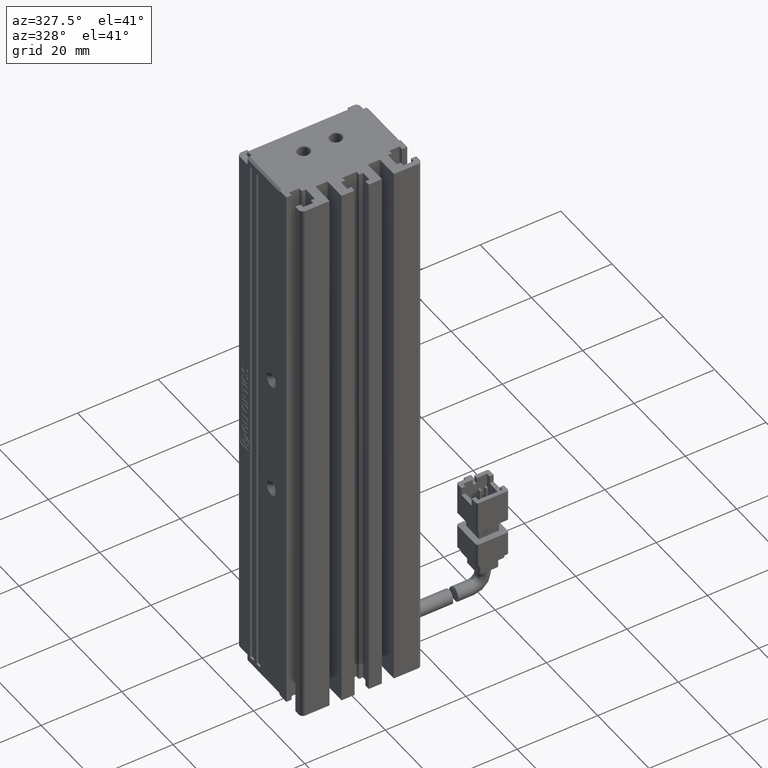
[diagram: clean part render]
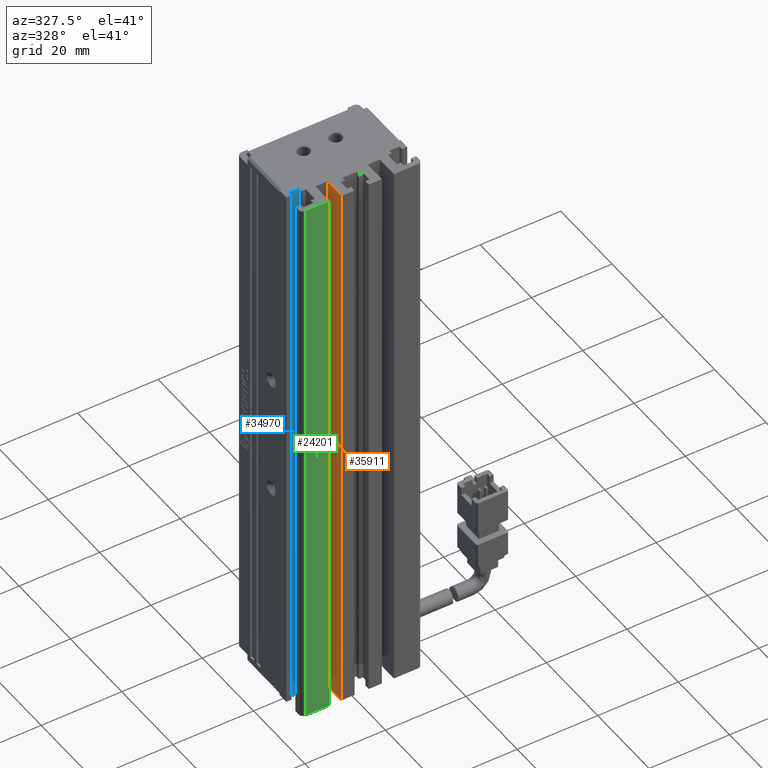
[diagram: same view with three faces highlighted in distinct colors, each labeled with its STEP entity id]
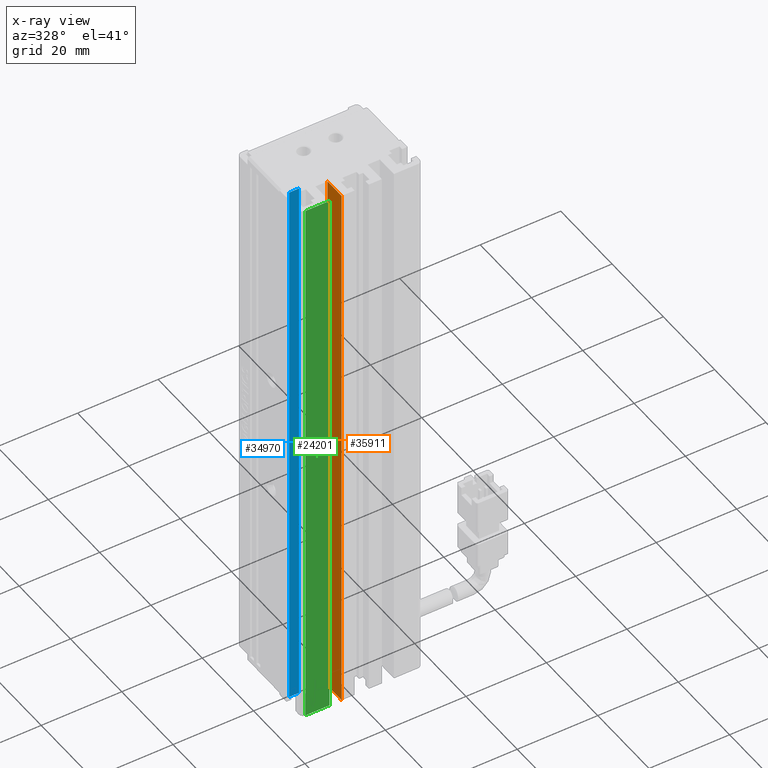
[diagram: x-ray of the same camera — body ghosted, the three highlighted faces saturated]
A machine part, auxiliary view with three faces highlighted in distinct colors.
The next image is the same camera in x-ray (body ghosted, the three faces saturated) — at least one of them is partly hidden behind the body in this view.
Their STEP definitions:

[orange] entity #35911 — the highlighted planar face has unit normal (-1, 0, 0).
#1397 = CARTESIAN_POINT ( 'NONE',  ( 35.92537974683543200, 10.69594479660386800, -45.00000000000000000 ) ) ;
#1851 = EDGE_LOOP ( 'NONE', ( #9898, #36147, #6650, #27850 ) ) ;
#2337 = VECTOR ( 'NONE', #10073, 1000.000000000000000 ) ;
#2978 = LINE ( 'NONE', #34655, #32596 ) ;
#3392 = EDGE_CURVE ( 'NONE', #16951, #4048, #2978, .T. ) ;
#3605 = CARTESIAN_POINT ( 'NONE',  ( 35.92537974683543200, 16.19594479660386500, -45.00000000000000000 ) ) ;
#4048 = VERTEX_POINT ( 'NONE', #20973 ) ;
#4151 = EDGE_CURVE ( 'NONE', #23689, #31642, #32890, .T. ) ;
#6650 = ORIENTED_EDGE ( 'NONE', *, *, #32200, .T. ) ;
#7803 = FACE_OUTER_BOUND ( 'NONE', #1851, .T. ) ;
#9898 = ORIENTED_EDGE ( 'NONE', *, *, #26881, .F. ) ;
#10042 = CARTESIAN_POINT ( 'NONE',  ( 35.92537974683543200, 7.083797468354437600, -45.00000000000000000 ) ) ;
#10073 = DIRECTION ( 'NONE',  ( 0.0000000000000000000, -0.0000000000000000000, -1.000000000000000000 ) ) ;
#10598 = LINE ( 'NONE', #28129, #24924 ) ;
#11026 = CARTESIAN_POINT ( 'NONE',  ( 35.92537974683543200, 10.69594479660386800, -185.0000000000000000 ) ) ;
#12921 = DIRECTION ( 'NONE',  ( 0.0000000000000000000, 0.0000000000000000000, 1.000000000000000000 ) ) ;
#15789 = DIRECTION ( 'NONE',  ( -0.0000000000000000000, -1.000000000000000000, 0.0000000000000000000 ) ) ;
#15877 = AXIS2_PLACEMENT_3D ( 'NONE', #10042, #30119, #12921 ) ;
#16704 = DIRECTION ( 'NONE',  ( -0.0000000000000000000, -1.000000000000000000, 0.0000000000000000000 ) ) ;
#16951 = VERTEX_POINT ( 'NONE', #3605 ) ;
#18164 = LINE ( 'NONE', #30088, #25802 ) ;
#20973 = CARTESIAN_POINT ( 'NONE',  ( 35.92537974683543200, 16.19594479660386500, -185.0000000000000000 ) ) ;
#23689 = VERTEX_POINT ( 'NONE', #30436 ) ;
#24924 = VECTOR ( 'NONE', #16704, 1000.000000000000000 ) ;
#25802 = VECTOR ( 'NONE', #15789, 1000.000000000000000 ) ;
#26881 = EDGE_CURVE ( 'NONE', #16951, #23689, #18164, .T. ) ;
#27850 = ORIENTED_EDGE ( 'NONE', *, *, #4151, .F. ) ;
#28129 = CARTESIAN_POINT ( 'NONE',  ( 35.92537974683543200, 7.083797468354437600, -185.0000000000000000 ) ) ;
#30088 = CARTESIAN_POINT ( 'NONE',  ( 35.92537974683543200, 7.083797468354437600, -45.00000000000000000 ) ) ;
#30119 = DIRECTION ( 'NONE',  ( -1.000000000000000000, 0.0000000000000000000, 0.0000000000000000000 ) ) ;
#30436 = CARTESIAN_POINT ( 'NONE',  ( 35.92537974683543200, 10.69594479660386800, -45.00000000000000000 ) ) ;
#31642 = VERTEX_POINT ( 'NONE', #11026 ) ;
#32200 = EDGE_CURVE ( 'NONE', #4048, #31642, #10598, .T. ) ;
#32596 = VECTOR ( 'NONE', #34774, 1000.000000000000000 ) ;
#32881 = PLANE ( 'NONE',  #15877 ) ;
#32890 = LINE ( 'NONE', #1397, #2337 ) ;
#34655 = CARTESIAN_POINT ( 'NONE',  ( 35.92537974683543200, 16.19594479660386500, -45.00000000000000000 ) ) ;
#34774 = DIRECTION ( 'NONE',  ( -0.0000000000000000000, -0.0000000000000000000, -1.000000000000000000 ) ) ;
#35911 = ADVANCED_FACE ( 'NONE', ( #7803 ), #32881, .T. ) ;
#36147 = ORIENTED_EDGE ( 'NONE', *, *, #3392, .T. ) ;

[blue] entity #34970 — the highlighted planar face has unit normal (0, 1, 0).
#2114 = CARTESIAN_POINT ( 'NONE',  ( 40.92537974683542500, 17.49594479660386500, -185.0000000000000000 ) ) ;
#2402 = EDGE_CURVE ( 'NONE', #18676, #33242, #3627, .T. ) ;
#2538 = ORIENTED_EDGE ( 'NONE', *, *, #19290, .F. ) ;
#3415 = CARTESIAN_POINT ( 'NONE',  ( 40.92537974683542500, 17.49594479660386500, -45.00000000000000000 ) ) ;
#3627 = LINE ( 'NONE', #36218, #17970 ) ;
#4691 = DIRECTION ( 'NONE',  ( 1.000000000000000000, 0.0000000000000000000, 0.0000000000000000000 ) ) ;
#5907 = CARTESIAN_POINT ( 'NONE',  ( 29.72537974683542600, 17.49594479660386500, -45.00000000000000000 ) ) ;
#5942 = EDGE_LOOP ( 'NONE', ( #2538, #17160, #21999, #11202 ) ) ;
#6301 = DIRECTION ( 'NONE',  ( 0.0000000000000000000, -0.0000000000000000000, 1.000000000000000000 ) ) ;
#6731 = CARTESIAN_POINT ( 'NONE',  ( 29.72537974683542600, 17.49594479660386500, -185.0000000000000000 ) ) ;
#6880 = VERTEX_POINT ( 'NONE', #10200 ) ;
#8128 = LINE ( 'NONE', #34931, #22460 ) ;
#10200 = CARTESIAN_POINT ( 'NONE',  ( 27.22537974683541500, 17.49594479660386500, -185.0000000000000000 ) ) ;
#10947 = CARTESIAN_POINT ( 'NONE',  ( 27.22537974683541500, 17.49594479660386500, -45.00000000000000000 ) ) ;
#11202 = ORIENTED_EDGE ( 'NONE', *, *, #14247, .T. ) ;
#14247 = EDGE_CURVE ( 'NONE', #6880, #24148, #26922, .T. ) ;
#14602 = LINE ( 'NONE', #10947, #28933 ) ;
#17160 = ORIENTED_EDGE ( 'NONE', *, *, #2402, .F. ) ;
#17970 = VECTOR ( 'NONE', #4691, 1000.000000000000000 ) ;
#18676 = VERTEX_POINT ( 'NONE', #23395 ) ;
#19290 = EDGE_CURVE ( 'NONE', #33242, #24148, #8128, .T. ) ;
#20594 = DIRECTION ( 'NONE',  ( -0.0000000000000000000, 0.0000000000000000000, -1.000000000000000000 ) ) ;
#21874 = EDGE_CURVE ( 'NONE', #6880, #18676, #14602, .T. ) ;
#21999 = ORIENTED_EDGE ( 'NONE', *, *, #21874, .F. ) ;
#22460 = VECTOR ( 'NONE', #20594, 1000.000000000000000 ) ;
#23395 = CARTESIAN_POINT ( 'NONE',  ( 27.22537974683541500, 17.49594479660386500, -45.00000000000000000 ) ) ;
#23446 = DIRECTION ( 'NONE',  ( 0.0000000000000000000, 1.000000000000000000, 0.0000000000000000000 ) ) ;
#23615 = FACE_OUTER_BOUND ( 'NONE', #5942, .T. ) ;
#24148 = VERTEX_POINT ( 'NONE', #6731 ) ;
#25077 = AXIS2_PLACEMENT_3D ( 'NONE', #3415, #23446, #6301 ) ;
#26922 = LINE ( 'NONE', #2114, #34578 ) ;
#28933 = VECTOR ( 'NONE', #33893, 1000.000000000000000 ) ;
#29109 = PLANE ( 'NONE',  #25077 ) ;
#33242 = VERTEX_POINT ( 'NONE', #5907 ) ;
#33893 = DIRECTION ( 'NONE',  ( 0.0000000000000000000, -0.0000000000000000000, 1.000000000000000000 ) ) ;
#34578 = VECTOR ( 'NONE', #36415, 1000.000000000000000 ) ;
#34931 = CARTESIAN_POINT ( 'NONE',  ( 29.72537974683542600, 17.49594479660386500, -45.00000000000000000 ) ) ;
#34970 = ADVANCED_FACE ( 'NONE', ( #23615 ), #29109, .F. ) ;
#36218 = CARTESIAN_POINT ( 'NONE',  ( 40.92537974683542500, 17.49594479660386500, -45.00000000000000000 ) ) ;
#36415 = DIRECTION ( 'NONE',  ( 1.000000000000000000, 0.0000000000000000000, 0.0000000000000000000 ) ) ;

[green] entity #24201 — the highlighted planar face has unit normal (0, -1, 0).
#448 = VERTEX_POINT ( 'NONE', #27475 ) ;
#496 = DIRECTION ( 'NONE',  ( 0.0000000000000000000, 0.0000000000000000000, 1.000000000000000000 ) ) ;
#1401 = DIRECTION ( 'NONE',  ( 0.0000000000000000000, -1.000000000000000000, 0.0000000000000000000 ) ) ;
#1472 = EDGE_CURVE ( 'NONE', #14085, #31109, #10545, .T. ) ;
#2875 = DIRECTION ( 'NONE',  ( 1.000000000000000000, 0.0000000000000000000, 0.0000000000000000000 ) ) ;
#3396 = DIRECTION ( 'NONE',  ( 1.000000000000000000, 0.0000000000000000000, 0.0000000000000000000 ) ) ;
#3505 = LINE ( 'NONE', #14687, #25492 ) ;
#4206 = PLANE ( 'NONE',  #19450 ) ;
#4347 = DIRECTION ( 'NONE',  ( 0.0000000000000000000, -0.0000000000000000000, -1.000000000000000000 ) ) ;
#6277 = CARTESIAN_POINT ( 'NONE',  ( 40.92537974683542500, 10.69594479660386800, -185.0000000000000000 ) ) ;
#10545 = LINE ( 'NONE', #6277, #24874 ) ;
#13311 = EDGE_CURVE ( 'NONE', #31109, #25440, #3505, .T. ) ;
#14085 = VERTEX_POINT ( 'NONE', #26985 ) ;
#14687 = CARTESIAN_POINT ( 'NONE',  ( 32.92537974683543200, 10.69594479660386800, -45.00000000000000000 ) ) ;
#17004 = VECTOR ( 'NONE', #4347, 1000.000000000000000 ) ;
#17932 = LINE ( 'NONE', #18778, #17004 ) ;
#18620 = CARTESIAN_POINT ( 'NONE',  ( 40.92537974683542500, 10.69594479660386800, -45.00000000000000000 ) ) ;
#18778 = CARTESIAN_POINT ( 'NONE',  ( 26.92537974683542100, 10.69594479660386800, -45.00000000000000000 ) ) ;
#18963 = EDGE_LOOP ( 'NONE', ( #27141, #26771, #25571, #23306 ) ) ;
#19450 = AXIS2_PLACEMENT_3D ( 'NONE', #18620, #1401, #21487 ) ;
#19543 = CARTESIAN_POINT ( 'NONE',  ( 32.92537974683543200, 10.69594479660386800, -185.0000000000000000 ) ) ;
#20062 = CARTESIAN_POINT ( 'NONE',  ( 40.92537974683542500, 10.69594479660386800, -45.00000000000000000 ) ) ;
#21487 = DIRECTION ( 'NONE',  ( 0.0000000000000000000, -0.0000000000000000000, -1.000000000000000000 ) ) ;
#23306 = ORIENTED_EDGE ( 'NONE', *, *, #13311, .T. ) ;
#24201 = ADVANCED_FACE ( 'NONE', ( #25396 ), #4206, .T. ) ;
#24874 = VECTOR ( 'NONE', #3396, 1000.000000000000000 ) ;
#25023 = EDGE_CURVE ( 'NONE', #448, #25440, #30554, .T. ) ;
#25356 = EDGE_CURVE ( 'NONE', #448, #14085, #17932, .T. ) ;
#25396 = FACE_OUTER_BOUND ( 'NONE', #18963, .T. ) ;
#25440 = VERTEX_POINT ( 'NONE', #30558 ) ;
#25492 = VECTOR ( 'NONE', #496, 1000.000000000000000 ) ;
#25571 = ORIENTED_EDGE ( 'NONE', *, *, #1472, .T. ) ;
#26771 = ORIENTED_EDGE ( 'NONE', *, *, #25356, .T. ) ;
#26985 = CARTESIAN_POINT ( 'NONE',  ( 26.92537974683542100, 10.69594479660386800, -185.0000000000000000 ) ) ;
#27141 = ORIENTED_EDGE ( 'NONE', *, *, #25023, .F. ) ;
#27475 = CARTESIAN_POINT ( 'NONE',  ( 26.92537974683542100, 10.69594479660386800, -45.00000000000000000 ) ) ;
#30554 = LINE ( 'NONE', #20062, #31450 ) ;
#30558 = CARTESIAN_POINT ( 'NONE',  ( 32.92537974683543200, 10.69594479660386800, -45.00000000000000000 ) ) ;
#31109 = VERTEX_POINT ( 'NONE', #19543 ) ;
#31450 = VECTOR ( 'NONE', #2875, 1000.000000000000000 ) ;